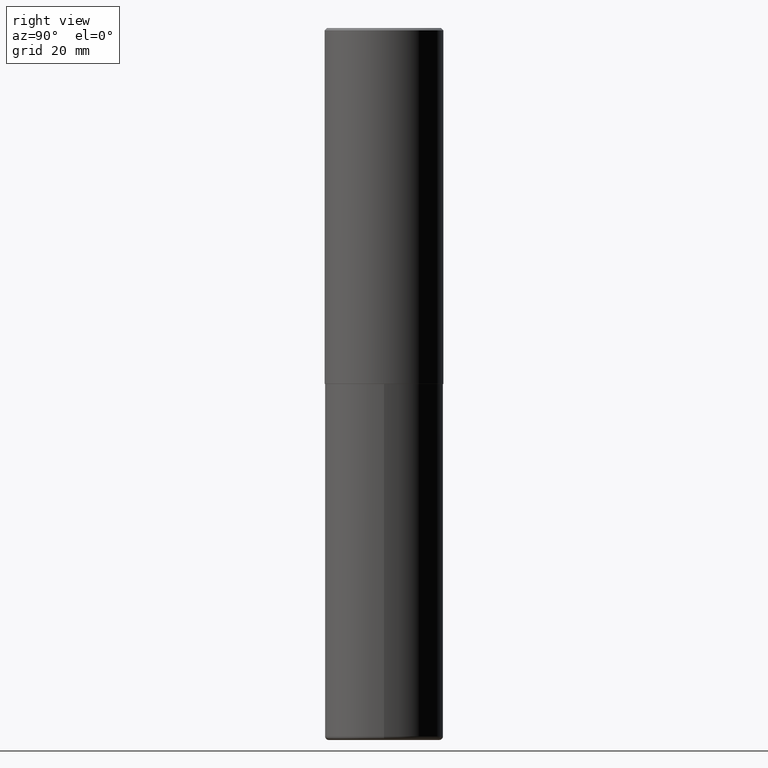
[diagram: clean part render]
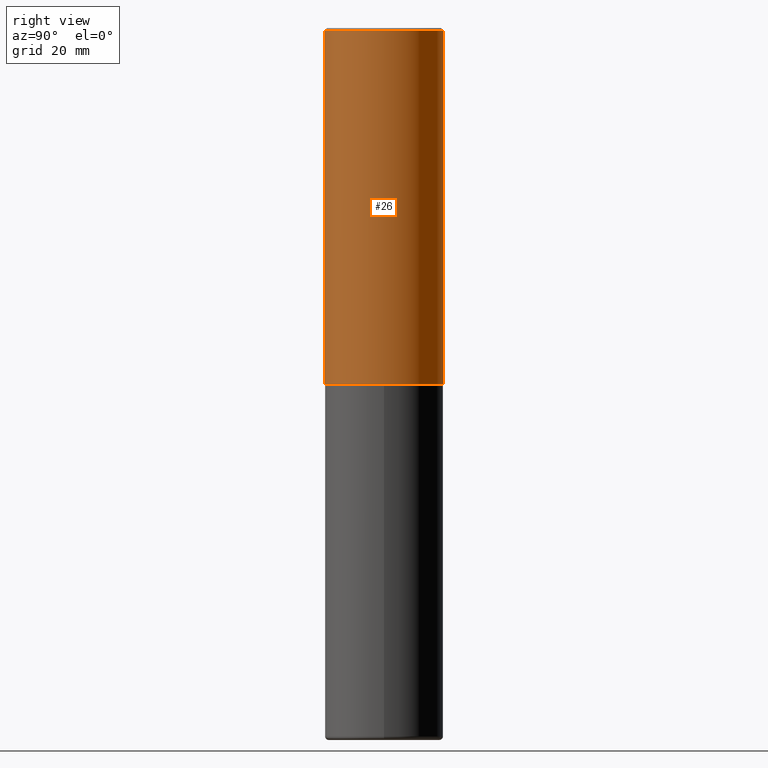
[diagram: same view with one face highlighted and labeled with its STEP entity id]
A machine part, right view. The second image highlights one B-rep face of the part: STEP entity #26.
In plain terms, the highlighted cylindrical surface (partial cylindrical patch) has radius 12.7 mm, axis along (-0, 0, 1).
Its self-contained STEP definition (entity closure, byte-faithful):
#5 = AXIS2_PLACEMENT_3D ( 'NONE', #252, #53, #348 ) ;
#8 = VERTEX_POINT ( 'NONE', #396 ) ;
#14 = CARTESIAN_POINT ( 'NONE',  ( 3.491481338843133355E-15, 0.4999999999999999445, -0.02000000000000185310 ) ) ;
#24 = EDGE_CURVE ( 'NONE', #306, #327, #316, .T. ) ;
#26 = ADVANCED_FACE ( 'NONE', ( #49 ), #110, .T. ) ;
#49 = FACE_OUTER_BOUND ( 'NONE', #228, .T. ) ;
#53 = DIRECTION ( 'NONE',  ( -2.444898033699712212E-29, 3.492298717528625990E-15, 1.000000000000000000 ) ) ;
#61 = EDGE_CURVE ( 'NONE', #306, #8, #414, .T. ) ;
#69 = CARTESIAN_POINT ( 'NONE',  ( 3.552713678800501718E-15, 0.5000000000000001110, -1.746149358764313390E-15 ) ) ;
#73 = ORIENTED_EDGE ( 'NONE', *, *, #262, .F. ) ;
#81 = CARTESIAN_POINT ( 'NONE',  ( 4.889796067399450837E-31, -6.984597435057287381E-17, -0.02000000000000010797 ) ) ;
#110 = CYLINDRICAL_SURFACE ( 'NONE', #303, 0.5000000000000001110 ) ;
#126 = CARTESIAN_POINT ( 'NONE',  ( 3.552713678800539584E-15, 0.4999999999999898970, -2.999000000000001886 ) ) ;
#129 = VERTEX_POINT ( 'NONE', #14 ) ;
#130 = CIRCLE ( 'NONE', #377, 0.5000000000000000000 ) ;
#164 = DIRECTION ( 'NONE',  ( -2.444898033699711931E-29, 3.492298717528626385E-15, 1.000000000000000000 ) ) ;
#175 = CARTESIAN_POINT ( 'NONE',  ( 0.000000000000000000, 0.000000000000000000, 0.000000000000000000 ) ) ;
#207 = LINE ( 'NONE', #69, #250 ) ;
#209 = DIRECTION ( 'NONE',  ( -6.982962677686265922E-15, -1.000000000000000000, 3.491643216902136408E-15 ) ) ;
#228 = EDGE_LOOP ( 'NONE', ( #301, #370, #73, #355 ) ) ;
#250 = VECTOR ( 'NONE', #164, 39.37007874015748143 ) ;
#252 = CARTESIAN_POINT ( 'NONE',  ( 7.332249203065438921E-29, -1.047340385386834930E-14, -2.999000000000000554 ) ) ;
#262 = EDGE_CURVE ( 'NONE', #8, #129, #130, .T. ) ;
#277 = VECTOR ( 'NONE', #280, 39.37007874015748143 ) ;
#280 = DIRECTION ( 'NONE',  ( -2.444898033699711931E-29, 3.492298717528626385E-15, 1.000000000000000000 ) ) ;
#291 = CARTESIAN_POINT ( 'NONE',  ( -3.491481338843061569E-15, -0.5000000000000107692, -2.998999999999998778 ) ) ;
#301 = ORIENTED_EDGE ( 'NONE', *, *, #24, .T. ) ;
#303 = AXIS2_PLACEMENT_3D ( 'NONE', #175, #378, #350 ) ;
#306 = VERTEX_POINT ( 'NONE', #291 ) ;
#316 = CIRCLE ( 'NONE', #5, 0.5000000000000002220 ) ;
#318 = DIRECTION ( 'NONE',  ( -2.444898033699712212E-29, 3.492298717528625990E-15, 1.000000000000000000 ) ) ;
#320 = EDGE_CURVE ( 'NONE', #327, #129, #207, .T. ) ;
#327 = VERTEX_POINT ( 'NONE', #126 ) ;
#342 = CARTESIAN_POINT ( 'NONE',  ( -3.491481338843133750E-15, -0.5000000000000001110, 1.746149358764313390E-15 ) ) ;
#348 = DIRECTION ( 'NONE',  ( -6.982962677686266711E-15, -1.000000000000000000, 3.278217592397114284E-15 ) ) ;
#350 = DIRECTION ( 'NONE',  ( -6.982962677686265922E-15, -1.000000000000000000, 3.492298717528625990E-15 ) ) ;
#355 = ORIENTED_EDGE ( 'NONE', *, *, #61, .F. ) ;
#370 = ORIENTED_EDGE ( 'NONE', *, *, #320, .T. ) ;
#377 = AXIS2_PLACEMENT_3D ( 'NONE', #81, #318, #209 ) ;
#378 = DIRECTION ( 'NONE',  ( -2.444898033699712212E-29, 3.492298717528625990E-15, 1.000000000000000000 ) ) ;
#396 = CARTESIAN_POINT ( 'NONE',  ( -3.430248998885764992E-15, -0.5000000000000001110, -0.01999999999999835937 ) ) ;
#414 = LINE ( 'NONE', #342, #277 ) ;